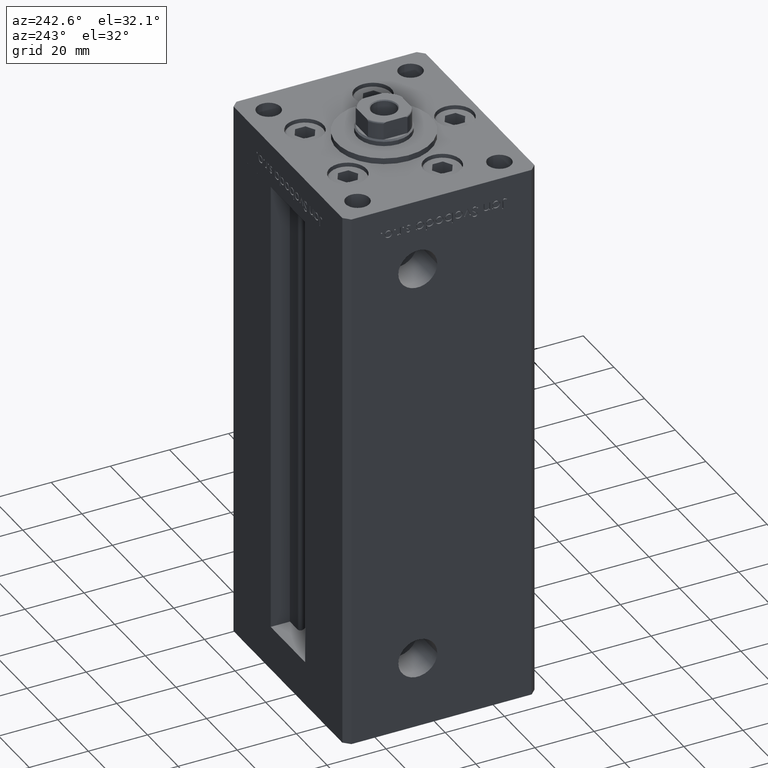
[diagram: clean part render]
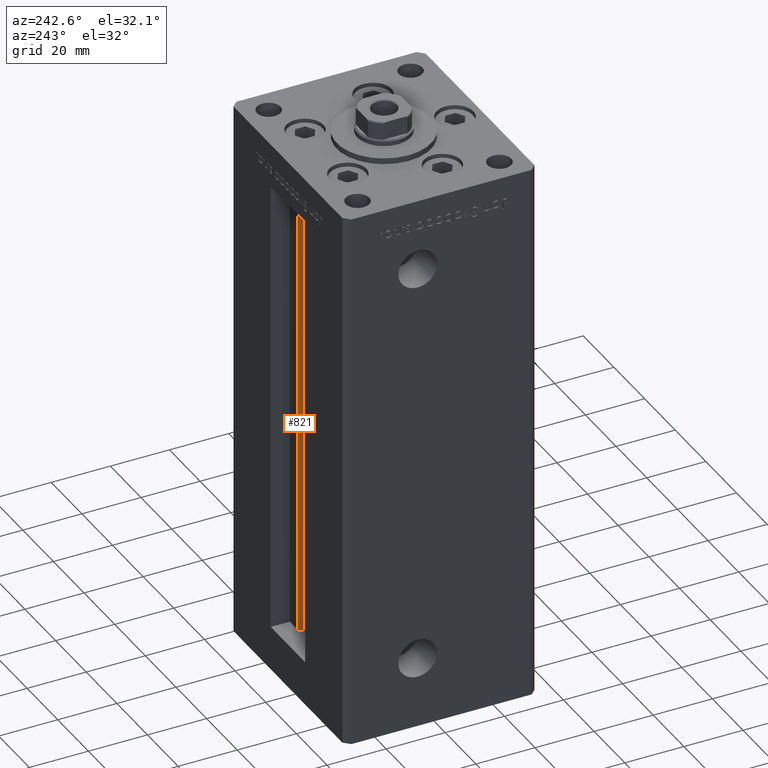
[diagram: same view with one face highlighted and labeled with its STEP entity id]
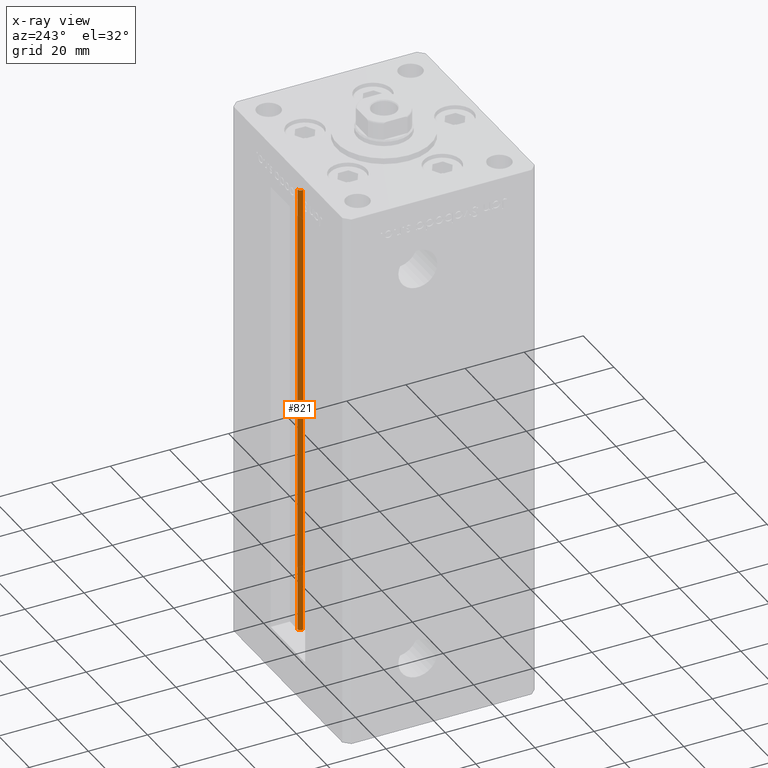
[diagram: x-ray of the same camera — body ghosted, the highlighted face saturated]
A machine part, auxiliary view. The second image highlights one B-rep face of the part: STEP entity #821.
The next image is the same camera in x-ray: the body ghosted, the highlighted face saturated — about 0% of this face is hidden behind the body in this view.
In plain terms, the highlighted cylindrical surface (edge-blend (fillet) strip) has radius 0.9333 mm, axis along (0, 0, 1).
Its self-contained STEP definition (entity closure, byte-faithful):
#275 = CARTESIAN_POINT ( 'NONE',  ( 6.183333333334001480, 25.99999999999999289, 0.000000000000000000 ) ) ;
#581 = EDGE_CURVE ( 'NONE', #17742, #30223, #31908, .T. ) ;
#821 = ADVANCED_FACE ( 'NONE', ( #33005 ), #16650, .T. ) ;
#2329 = DIRECTION ( 'NONE',  ( -0.000000000000000000, -0.000000000000000000, -1.000000000000000000 ) ) ;
#3104 = CARTESIAN_POINT ( 'NONE',  ( 5.375042956467948052, 24.59999999999899245, 156.0000000000000000 ) ) ;
#3283 = AXIS2_PLACEMENT_3D ( 'NONE', #16772, #17301, #32593 ) ;
#3543 = DIRECTION ( 'NONE',  ( -0.000000000000000000, -0.000000000000000000, 1.000000000000000000 ) ) ;
#5298 = CARTESIAN_POINT ( 'NONE',  ( 6.183333333334001480, 25.06666666666599141, 0.000000000000000000 ) ) ;
#7197 = ORIENTED_EDGE ( 'NONE', *, *, #581, .T. ) ;
#8134 = VECTOR ( 'NONE', #3543, 1000.000000000000000 ) ;
#8211 = DIRECTION ( 'NONE',  ( -0.000000000000000000, -0.000000000000000000, 1.000000000000000000 ) ) ;
#10517 = CARTESIAN_POINT ( 'NONE',  ( 6.183333333334001480, 25.06666666666599141, 0.000000000000000000 ) ) ;
#11992 = CARTESIAN_POINT ( 'NONE',  ( 5.375042956467947164, 24.59999999999899245, 0.000000000000000000 ) ) ;
#12510 = EDGE_CURVE ( 'NONE', #40249, #17742, #48104, .T. ) ;
#14423 = AXIS2_PLACEMENT_3D ( 'NONE', #10517, #2329, #42439 ) ;
#16650 = CYLINDRICAL_SURFACE ( 'NONE', #44565, 0.9333333333340008142 ) ;
#16772 = CARTESIAN_POINT ( 'NONE',  ( 6.183333333334001480, 25.06666666666599141, 156.0000000000000000 ) ) ;
#17301 = DIRECTION ( 'NONE',  ( 0.000000000000000000, 0.000000000000000000, -1.000000000000000000 ) ) ;
#17742 = VERTEX_POINT ( 'NONE', #3104 ) ;
#18801 = VERTEX_POINT ( 'NONE', #20198 ) ;
#19294 = ORIENTED_EDGE ( 'NONE', *, *, #30311, .F. ) ;
#19471 = CIRCLE ( 'NONE', #14423, 0.9333333333340008142 ) ;
#20198 = CARTESIAN_POINT ( 'NONE',  ( 6.183333333334001480, 25.99999999999999289, 0.000000000000000000 ) ) ;
#30223 = VERTEX_POINT ( 'NONE', #44607 ) ;
#30311 = EDGE_CURVE ( 'NONE', #18801, #30223, #44343, .T. ) ;
#31908 = CIRCLE ( 'NONE', #3283, 0.9333333333340008142 ) ;
#32593 = DIRECTION ( 'NONE',  ( 1.000000000000000000, 0.000000000000000000, 0.000000000000000000 ) ) ;
#33005 = FACE_OUTER_BOUND ( 'NONE', #40510, .T. ) ;
#34619 = ORIENTED_EDGE ( 'NONE', *, *, #12510, .T. ) ;
#36005 = ORIENTED_EDGE ( 'NONE', *, *, #44073, .F. ) ;
#36205 = CARTESIAN_POINT ( 'NONE',  ( 5.375042956467947164, 24.59999999999899245, 0.000000000000000000 ) ) ;
#37474 = DIRECTION ( 'NONE',  ( 1.000000000000000000, 0.000000000000000000, 0.000000000000000000 ) ) ;
#40249 = VERTEX_POINT ( 'NONE', #36205 ) ;
#40510 = EDGE_LOOP ( 'NONE', ( #19294, #36005, #34619, #7197 ) ) ;
#42439 = DIRECTION ( 'NONE',  ( 1.000000000000000000, 0.000000000000000000, 0.000000000000000000 ) ) ;
#43035 = VECTOR ( 'NONE', #8211, 1000.000000000000000 ) ;
#44073 = EDGE_CURVE ( 'NONE', #40249, #18801, #19471, .T. ) ;
#44343 = LINE ( 'NONE', #275, #43035 ) ;
#44565 = AXIS2_PLACEMENT_3D ( 'NONE', #5298, #48794, #37474 ) ;
#44607 = CARTESIAN_POINT ( 'NONE',  ( 6.183333333334001480, 25.99999999999999289, 156.0000000000000000 ) ) ;
#48104 = LINE ( 'NONE', #11992, #8134 ) ;
#48794 = DIRECTION ( 'NONE',  ( -0.000000000000000000, -0.000000000000000000, 1.000000000000000000 ) ) ;